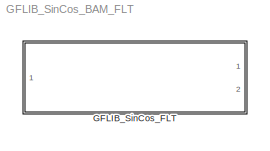
MODEL GFLIB_SinCos_BAM_FLT
KIND model
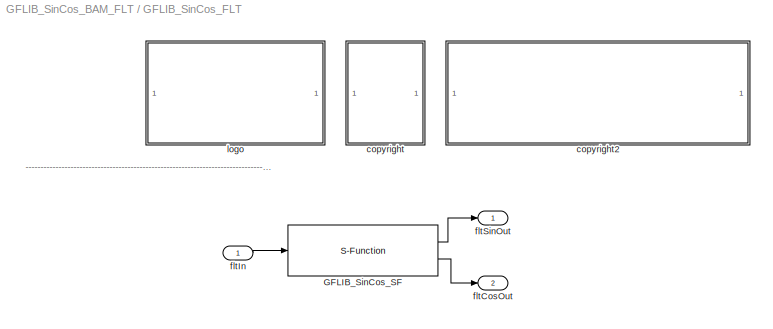
BLOCK [SubSystem] GFLIB_SinCos_FLT
  Ports = [1, 2]
  RequestExecContextInheritance = off
  SID = 1
BLOCK [S-Function] GFLIB_SinCos_FLT/GFLIB_SinCos_SF
  EnableBusSupport = off
  FunctionName = GFLIB_SinCos_SF_FLT
  Ports = [1, 2]
  SID = 4
BLOCK [SubSystem] GFLIB_SinCos_FLT/<copyright redacted>
  Ports = []
  RequestExecContextInheritance = off
  SID = 12
BLOCK [SubSystem] GFLIB_SinCos_FLT/copyright2
  Ports = []
  RequestExecContextInheritance = off
  SID = 15
BLOCK [Outport] GFLIB_SinCos_FLT/fltCosOut
  IconDisplay = Port number
  Port = 2
  SID = 7
BLOCK [Inport] GFLIB_SinCos_FLT/fltIn
  IconDisplay = Port number
  SID = 5
BLOCK [Outport] GFLIB_SinCos_FLT/fltSinOut
  IconDisplay = Port number
  SID = 6
BLOCK [SubSystem] GFLIB_SinCos_FLT/logo
  Ports = []
  RequestExecContextInheritance = off
  SID = 8
ANNOTATION GFLIB_SinCos_FLT: ---------------------------------------------------------------------------------------------------------------------------------------------------------------------------------------------------
LINE GFLIB_SinCos_FLT/GFLIB_SinCos_SF:1 -> GFLIB_SinCos_FLT/fltSinOut:1
LINE GFLIB_SinCos_FLT/GFLIB_SinCos_SF:2 -> GFLIB_SinCos_FLT/fltCosOut:1
LINE GFLIB_SinCos_FLT/fltIn:1 -> GFLIB_SinCos_FLT/GFLIB_SinCos_SF:1
